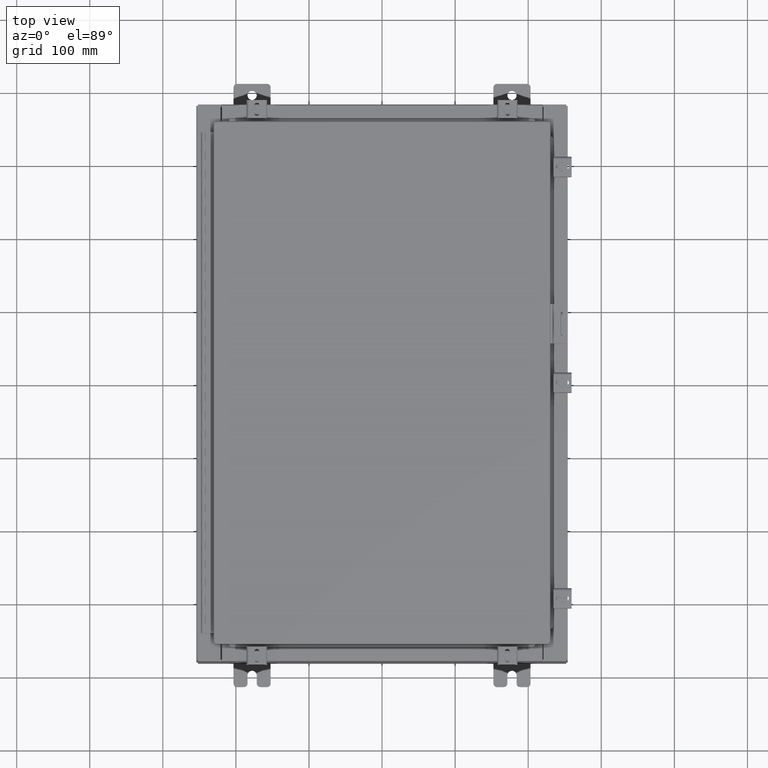
[diagram: clean part render]
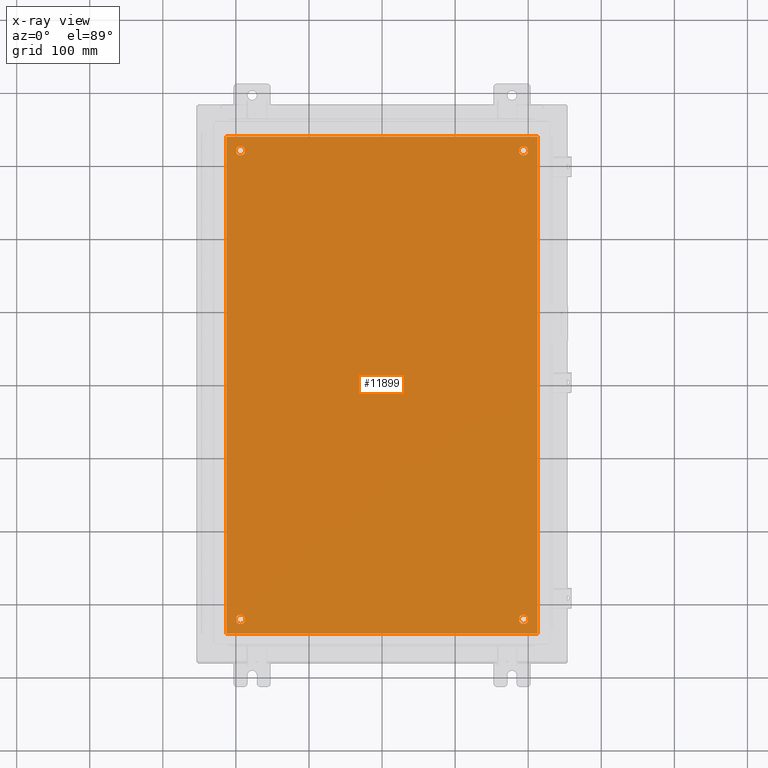
[diagram: x-ray — body ghosted, one internal face saturated and labeled with its STEP entity id]
A machine part, top view, then the same camera in x-ray: the body is ghosted and one INTERNAL B-rep face — a face not visible from any outside direction — is saturated and labeled: STEP entity #11899.
In plain terms, the highlighted planar face has unit normal (0, 0, -1).
Its self-contained STEP definition (entity closure, byte-faithful):
#147 = DIRECTION ( 'NONE',  ( -0.0000000000000000000, -0.0000000000000000000, 1.000000000000000000 ) ) ;
#2067 = ORIENTED_EDGE ( 'NONE', *, *, #17028, .T. ) ;
#2100 = CARTESIAN_POINT ( 'NONE',  ( -8.383000000000000900, 13.38300000000000100, -0.1039999999999999000 ) ) ;
#2293 = CARTESIAN_POINT ( 'NONE',  ( -7.375000000000003600, 12.62500000000000200, -0.1040000000000000400 ) ) ;
#2783 = DIRECTION ( 'NONE',  ( 1.000000000000000000, -0.0000000000000000000, -0.0000000000000000000 ) ) ;
#3843 = DIRECTION ( 'NONE',  ( -1.000000000000000000, -0.0000000000000000000, -0.0000000000000000000 ) ) ;
#3951 = CARTESIAN_POINT ( 'NONE',  ( 8.383000000000002700, -13.38299999999999200, -0.1039999999999992200 ) ) ;
#4037 = DIRECTION ( 'NONE',  ( -0.0000000000000000000, -0.0000000000000000000, 1.000000000000000000 ) ) ;
#4536 = EDGE_CURVE ( 'NONE', #8164, #10373, #29176, .T. ) ;
#4900 = ORIENTED_EDGE ( 'NONE', *, *, #5942, .T. ) ;
#5429 = DIRECTION ( 'NONE',  ( 0.0000000000000000000, 0.0000000000000000000, -1.000000000000000000 ) ) ;
#5774 = CIRCLE ( 'NONE', #9237, 0.2499999999999987000 ) ;
#5942 = EDGE_CURVE ( 'NONE', #24080, #10408, #5774, .T. ) ;
#6529 = VECTOR ( 'NONE', #3843, 39.37007874015748100 ) ;
#7026 = CIRCLE ( 'NONE', #17860, 0.2499999999999998100 ) ;
#7675 = CARTESIAN_POINT ( 'NONE',  ( 7.375000000000004400, 12.62500000000000200, -0.1040000000000000400 ) ) ;
#7792 = CIRCLE ( 'NONE', #29872, 0.2499999999999987000 ) ;
#7916 = EDGE_CURVE ( 'NONE', #28213, #19552, #7026, .T. ) ;
#8164 = VERTEX_POINT ( 'NONE', #13151 ) ;
#8925 = VERTEX_POINT ( 'NONE', #24821 ) ;
#8949 = DIRECTION ( 'NONE',  ( -0.0000000000000000000, -0.0000000000000000000, 1.000000000000000000 ) ) ;
#9047 = CIRCLE ( 'NONE', #23578, 0.2499999999999998100 ) ;
#9122 = CARTESIAN_POINT ( 'NONE',  ( -7.625000000000002700, -12.62500000000000200, -0.1040000000000000400 ) ) ;
#9237 = AXIS2_PLACEMENT_3D ( 'NONE', #30459, #12972, #33412 ) ;
#9592 = ORIENTED_EDGE ( 'NONE', *, *, #17018, .T. ) ;
#10016 = VERTEX_POINT ( 'NONE', #17972 ) ;
#10098 = EDGE_LOOP ( 'NONE', ( #27656, #2067 ) ) ;
#10373 = VERTEX_POINT ( 'NONE', #3951 ) ;
#10408 = VERTEX_POINT ( 'NONE', #36300 ) ;
#11181 = EDGE_LOOP ( 'NONE', ( #29633, #35246, #27005, #24882 ) ) ;
#11899 = ADVANCED_FACE ( 'NONE', ( #12894, #19739, #34395, #26567, #27481 ), #25725, .T. ) ;
#12055 = DIRECTION ( 'NONE',  ( -1.000000000000000000, 0.0000000000000000000, 0.0000000000000000000 ) ) ;
#12434 = CARTESIAN_POINT ( 'NONE',  ( 8.500000000000001800, 13.38300000000000300, -0.1040000000000008600 ) ) ;
#12482 = LINE ( 'NONE', #24424, #34883 ) ;
#12767 = VERTEX_POINT ( 'NONE', #26664 ) ;
#12894 = FACE_BOUND ( 'NONE', #10098, .T. ) ;
#12972 = DIRECTION ( 'NONE',  ( -0.0000000000000000000, -0.0000000000000000000, 1.000000000000000000 ) ) ;
#13151 = CARTESIAN_POINT ( 'NONE',  ( -8.383000000000000900, -13.38299999999999400, -0.1040000000000008600 ) ) ;
#14467 = AXIS2_PLACEMENT_3D ( 'NONE', #21556, #4037, #24489 ) ;
#15189 = EDGE_LOOP ( 'NONE', ( #18388, #4900 ) ) ;
#15834 = CARTESIAN_POINT ( 'NONE',  ( -7.625000000000002700, -12.62500000000000200, -0.1040000000000000400 ) ) ;
#16185 = DIRECTION ( 'NONE',  ( -0.0000000000000000000, -0.0000000000000000000, 1.000000000000000000 ) ) ;
#17018 = EDGE_CURVE ( 'NONE', #25889, #24987, #34560, .T. ) ;
#17028 = EDGE_CURVE ( 'NONE', #8925, #29489, #25846, .T. ) ;
#17358 = ORIENTED_EDGE ( 'NONE', *, *, #34732, .T. ) ;
#17527 = DIRECTION ( 'NONE',  ( -0.0000000000000000000, -0.0000000000000000000, 1.000000000000000000 ) ) ;
#17708 = CARTESIAN_POINT ( 'NONE',  ( 7.625000000000002700, 12.62500000000000200, -0.1040000000000000400 ) ) ;
#17860 = AXIS2_PLACEMENT_3D ( 'NONE', #26430, #8949, #29344 ) ;
#17972 = CARTESIAN_POINT ( 'NONE',  ( -8.383000000000000900, 13.38300000000000100, -0.1039999999999999000 ) ) ;
#18388 = ORIENTED_EDGE ( 'NONE', *, *, #19589, .T. ) ;
#18737 = DIRECTION ( 'NONE',  ( -1.000000000000000000, 0.0000000000000000000, 0.0000000000000000000 ) ) ;
#19417 = EDGE_CURVE ( 'NONE', #10016, #8164, #27824, .T. ) ;
#19552 = VERTEX_POINT ( 'NONE', #23217 ) ;
#19589 = EDGE_CURVE ( 'NONE', #10408, #24080, #21435, .T. ) ;
#19739 = FACE_BOUND ( 'NONE', #30835, .T. ) ;
#20220 = CARTESIAN_POINT ( 'NONE',  ( 7.375000000000004400, -12.62500000000000200, -0.1040000000000000400 ) ) ;
#20632 = DIRECTION ( 'NONE',  ( -1.000000000000000000, 0.0000000000000000000, 0.0000000000000000000 ) ) ;
#21435 = CIRCLE ( 'NONE', #27647, 0.2499999999999987000 ) ;
#21556 = CARTESIAN_POINT ( 'NONE',  ( 7.625000000000002700, -12.62500000000000200, -0.1040000000000000400 ) ) ;
#21598 = EDGE_LOOP ( 'NONE', ( #32382, #29978 ) ) ;
#22089 = LINE ( 'NONE', #12434, #6529 ) ;
#22585 = DIRECTION ( 'NONE',  ( 0.0000000000000000000, -1.000000000000000000, 0.0000000000000000000 ) ) ;
#23217 = CARTESIAN_POINT ( 'NONE',  ( -7.875000000000002700, 12.62500000000000200, -0.1040000000000000400 ) ) ;
#23382 = EDGE_CURVE ( 'NONE', #12767, #10016, #22089, .T. ) ;
#23433 = EDGE_CURVE ( 'NONE', #10373, #12767, #12482, .T. ) ;
#23578 = AXIS2_PLACEMENT_3D ( 'NONE', #9122, #29523, #12055 ) ;
#24080 = VERTEX_POINT ( 'NONE', #7675 ) ;
#24272 = CARTESIAN_POINT ( 'NONE',  ( -7.375000000000003600, -12.62500000000000200, -0.1040000000000000400 ) ) ;
#24424 = CARTESIAN_POINT ( 'NONE',  ( 8.383000000000002700, -13.38299999999999200, -0.1039999999999992200 ) ) ;
#24489 = DIRECTION ( 'NONE',  ( -1.000000000000000000, 0.0000000000000000000, 0.0000000000000000000 ) ) ;
#24589 = CIRCLE ( 'NONE', #29934, 0.2499999999999998100 ) ;
#24821 = CARTESIAN_POINT ( 'NONE',  ( -7.875000000000002700, -12.62500000000000200, -0.1040000000000000400 ) ) ;
#24882 = ORIENTED_EDGE ( 'NONE', *, *, #23433, .F. ) ;
#24987 = VERTEX_POINT ( 'NONE', #20220 ) ;
#25616 = CARTESIAN_POINT ( 'NONE',  ( 7.875000000000001800, -12.62500000000000200, -0.1040000000000000400 ) ) ;
#25725 = PLANE ( 'NONE',  #34190 ) ;
#25846 = CIRCLE ( 'NONE', #28141, 0.2499999999999998100 ) ;
#25855 = DIRECTION ( 'NONE',  ( -1.000000000000000000, 0.0000000000000000000, -0.0000000000000000000 ) ) ;
#25889 = VERTEX_POINT ( 'NONE', #25616 ) ;
#26430 = CARTESIAN_POINT ( 'NONE',  ( -7.625000000000002700, 12.62500000000000200, -0.1040000000000000400 ) ) ;
#26567 = FACE_BOUND ( 'NONE', #21598, .T. ) ;
#26664 = CARTESIAN_POINT ( 'NONE',  ( 8.383000000000002700, 13.38300000000000100, -0.1039999999999992200 ) ) ;
#26898 = VECTOR ( 'NONE', #22585, 39.37007874015748100 ) ;
#27005 = ORIENTED_EDGE ( 'NONE', *, *, #23382, .F. ) ;
#27481 = FACE_OUTER_BOUND ( 'NONE', #11181, .T. ) ;
#27647 = AXIS2_PLACEMENT_3D ( 'NONE', #17708, #147, #20632 ) ;
#27656 = ORIENTED_EDGE ( 'NONE', *, *, #36020, .T. ) ;
#27824 = LINE ( 'NONE', #2100, #26898 ) ;
#28141 = AXIS2_PLACEMENT_3D ( 'NONE', #15834, #36257, #18737 ) ;
#28213 = VERTEX_POINT ( 'NONE', #2293 ) ;
#28273 = VECTOR ( 'NONE', #2783, 39.37007874015748100 ) ;
#29176 = LINE ( 'NONE', #35025, #28273 ) ;
#29344 = DIRECTION ( 'NONE',  ( -1.000000000000000000, 0.0000000000000000000, 0.0000000000000000000 ) ) ;
#29489 = VERTEX_POINT ( 'NONE', #24272 ) ;
#29523 = DIRECTION ( 'NONE',  ( -0.0000000000000000000, -0.0000000000000000000, 1.000000000000000000 ) ) ;
#29633 = ORIENTED_EDGE ( 'NONE', *, *, #4536, .F. ) ;
#29872 = AXIS2_PLACEMENT_3D ( 'NONE', #35036, #17527, #37989 ) ;
#29934 = AXIS2_PLACEMENT_3D ( 'NONE', #33674, #16185, #36606 ) ;
#29978 = ORIENTED_EDGE ( 'NONE', *, *, #36712, .T. ) ;
#30295 = DIRECTION ( 'NONE',  ( 0.0000000000000000000, 1.000000000000000000, 0.0000000000000000000 ) ) ;
#30459 = CARTESIAN_POINT ( 'NONE',  ( 7.625000000000002700, 12.62500000000000200, -0.1040000000000000400 ) ) ;
#30835 = EDGE_LOOP ( 'NONE', ( #9592, #17358 ) ) ;
#31589 = CARTESIAN_POINT ( 'NONE',  ( 0.0000000000000000000, 0.0000000000000000000, -0.1040000000000000400 ) ) ;
#32382 = ORIENTED_EDGE ( 'NONE', *, *, #7916, .T. ) ;
#33412 = DIRECTION ( 'NONE',  ( -1.000000000000000000, 0.0000000000000000000, 0.0000000000000000000 ) ) ;
#33674 = CARTESIAN_POINT ( 'NONE',  ( -7.625000000000002700, 12.62500000000000200, -0.1040000000000000400 ) ) ;
#34190 = AXIS2_PLACEMENT_3D ( 'NONE', #31589, #5429, #25855 ) ;
#34395 = FACE_BOUND ( 'NONE', #15189, .T. ) ;
#34560 = CIRCLE ( 'NONE', #14467, 0.2499999999999987000 ) ;
#34732 = EDGE_CURVE ( 'NONE', #24987, #25889, #7792, .T. ) ;
#34883 = VECTOR ( 'NONE', #30295, 39.37007874015748100 ) ;
#35025 = CARTESIAN_POINT ( 'NONE',  ( -8.500000000000000000, -13.38299999999999400, -0.1040000000000008600 ) ) ;
#35036 = CARTESIAN_POINT ( 'NONE',  ( 7.625000000000002700, -12.62500000000000200, -0.1040000000000000400 ) ) ;
#35246 = ORIENTED_EDGE ( 'NONE', *, *, #19417, .F. ) ;
#36020 = EDGE_CURVE ( 'NONE', #29489, #8925, #9047, .T. ) ;
#36257 = DIRECTION ( 'NONE',  ( -0.0000000000000000000, -0.0000000000000000000, 1.000000000000000000 ) ) ;
#36300 = CARTESIAN_POINT ( 'NONE',  ( 7.875000000000001800, 12.62500000000000200, -0.1040000000000000400 ) ) ;
#36606 = DIRECTION ( 'NONE',  ( -1.000000000000000000, 0.0000000000000000000, 0.0000000000000000000 ) ) ;
#36712 = EDGE_CURVE ( 'NONE', #19552, #28213, #24589, .T. ) ;
#37989 = DIRECTION ( 'NONE',  ( -1.000000000000000000, 0.0000000000000000000, 0.0000000000000000000 ) ) ;